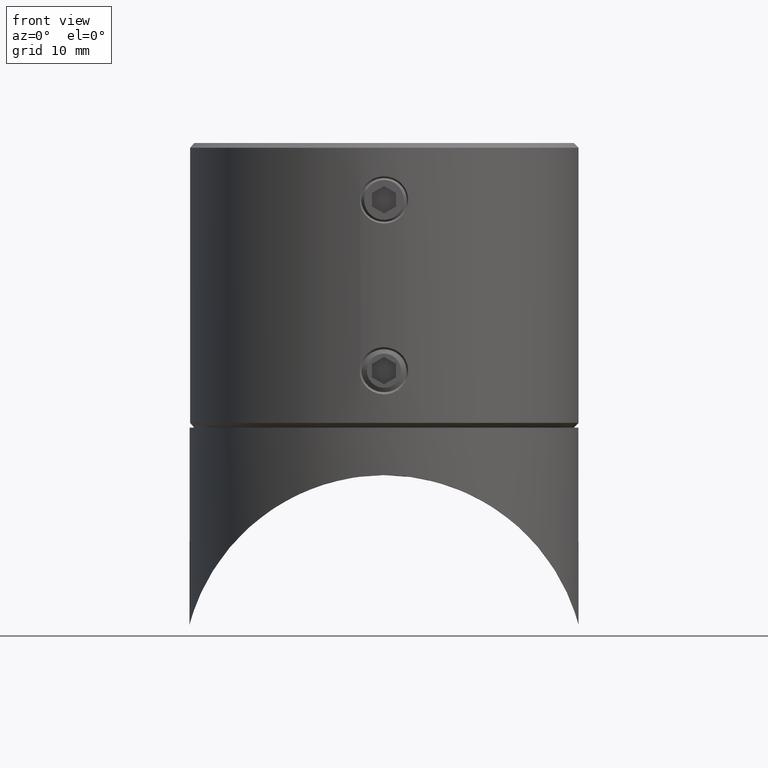
[diagram: clean part render]
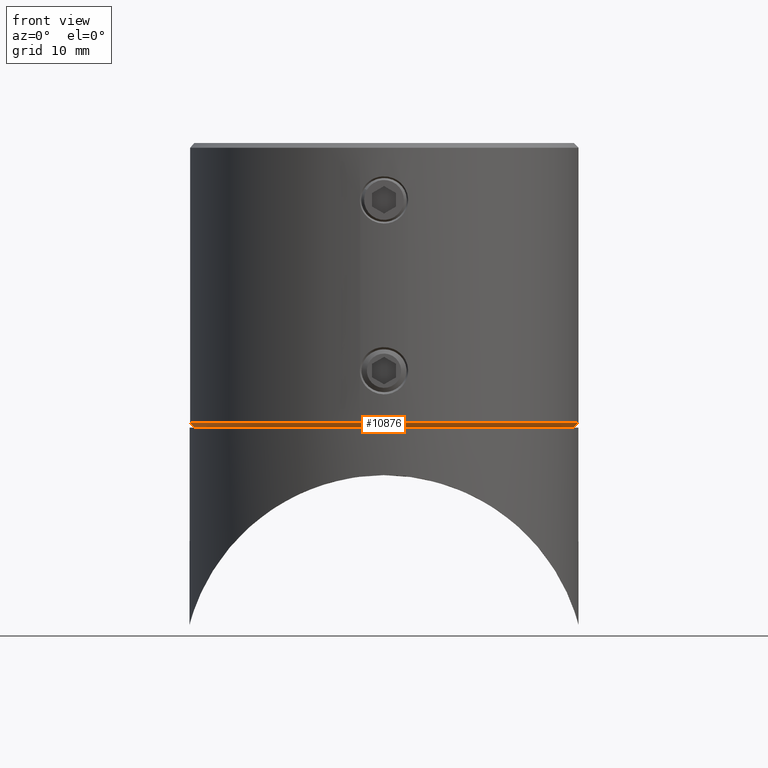
[diagram: same view with one face highlighted and labeled with its STEP entity id]
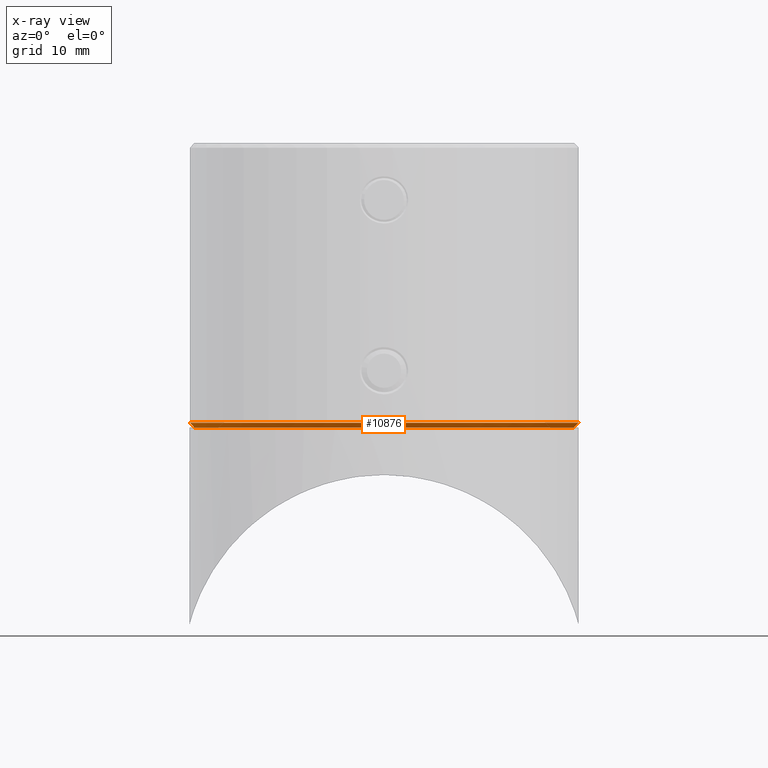
[diagram: x-ray of the same camera — body ghosted, the highlighted face saturated]
A machine part, front view. The second image highlights one B-rep face of the part: STEP entity #10876.
The next image is the same camera in x-ray: the body ghosted, the highlighted face saturated — about 0% of this face is hidden behind the body in this view.
In plain terms, the highlighted conical surface has half-angle 45 deg.
Its self-contained STEP definition (entity closure, byte-faithful):
#677 = VERTEX_POINT ( 'NONE', #9288 ) ;
#766 = DIRECTION ( 'NONE',  ( 1.000000000000000000, 0.000000000000000000, 0.000000000000000000 ) ) ;
#1486 = ORIENTED_EDGE ( 'NONE', *, *, #14600, .F. ) ;
#2593 = ORIENTED_EDGE ( 'NONE', *, *, #16037, .F. ) ;
#2661 = AXIS2_PLACEMENT_3D ( 'NONE', #6608, #13284, #15635 ) ;
#2918 = CIRCLE ( 'NONE', #2661, 20.00000000000000355 ) ;
#3959 = CARTESIAN_POINT ( 'NONE',  ( 0.000000000000000000, 0.000000000000000000, 0.4999999999999935052 ) ) ;
#3981 = EDGE_LOOP ( 'NONE', ( #2593 ) ) ;
#4582 = CONICAL_SURFACE ( 'NONE', #7266, 20.50000000000000000, 0.7853981633974482790 ) ;
#4714 = DIRECTION ( 'NONE',  ( -0.000000000000000000, -0.000000000000000000, 1.000000000000000000 ) ) ;
#4995 = FACE_BOUND ( 'NONE', #14837, .T. ) ;
#6608 = CARTESIAN_POINT ( 'NONE',  ( 0.000000000000000000, 0.000000000000000000, 0.000000000000000000 ) ) ;
#7266 = AXIS2_PLACEMENT_3D ( 'NONE', #3959, #8946, #7702 ) ;
#7578 = CIRCLE ( 'NONE', #13044, 20.50000000000000000 ) ;
#7702 = DIRECTION ( 'NONE',  ( 1.000000000000000000, 0.000000000000000000, 0.000000000000000000 ) ) ;
#8843 = FACE_OUTER_BOUND ( 'NONE', #3981, .T. ) ;
#8946 = DIRECTION ( 'NONE',  ( -0.000000000000000000, -0.000000000000000000, 1.000000000000000000 ) ) ;
#9288 = CARTESIAN_POINT ( 'NONE',  ( 20.50000000000000000, 0.000000000000000000, 0.4999999999999935052 ) ) ;
#9670 = CARTESIAN_POINT ( 'NONE',  ( 0.000000000000000000, 0.000000000000000000, 0.4999999999999935052 ) ) ;
#10876 = ADVANCED_FACE ( 'NONE', ( #4995, #8843 ), #4582, .T. ) ;
#11782 = CARTESIAN_POINT ( 'NONE',  ( 20.00000000000000355, 0.000000000000000000, 0.000000000000000000 ) ) ;
#13044 = AXIS2_PLACEMENT_3D ( 'NONE', #9670, #4714, #766 ) ;
#13284 = DIRECTION ( 'NONE',  ( -0.000000000000000000, -0.000000000000000000, -1.000000000000000000 ) ) ;
#14600 = EDGE_CURVE ( 'NONE', #15608, #15608, #2918, .T. ) ;
#14837 = EDGE_LOOP ( 'NONE', ( #1486 ) ) ;
#15608 = VERTEX_POINT ( 'NONE', #11782 ) ;
#15635 = DIRECTION ( 'NONE',  ( 1.000000000000000000, 0.000000000000000000, 0.000000000000000000 ) ) ;
#16037 = EDGE_CURVE ( 'NONE', #677, #677, #7578, .T. ) ;